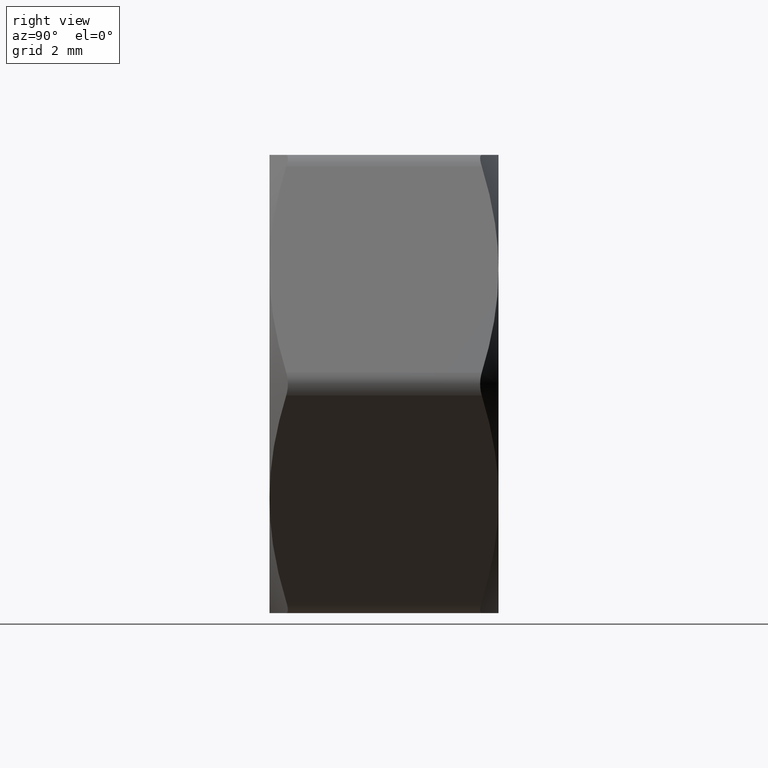
[diagram: clean part render]
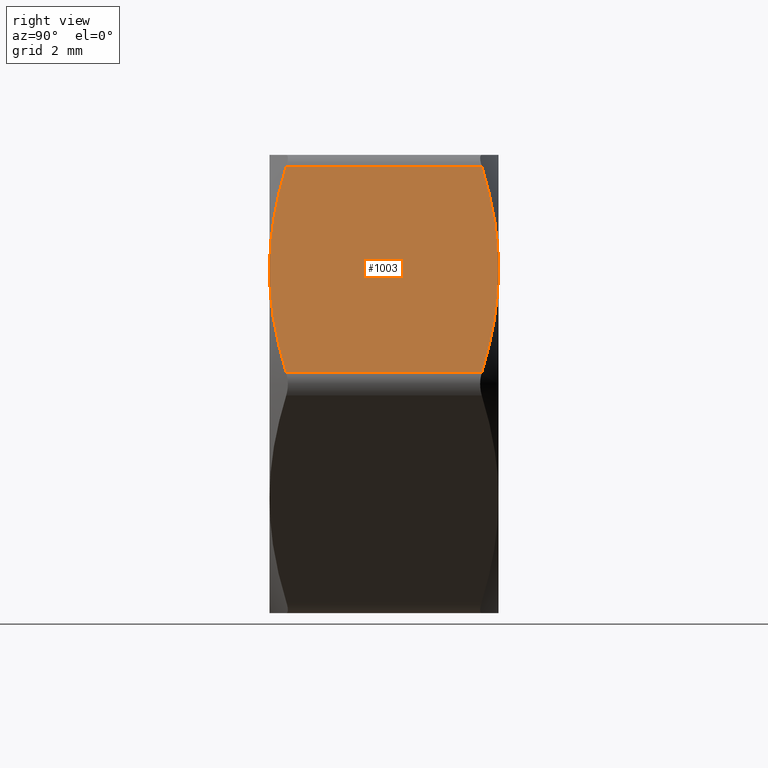
[diagram: same view with one face highlighted and labeled with its STEP entity id]
A machine part, right view. The second image highlights one B-rep face of the part: STEP entity #1003.
In plain terms, the highlighted planar face has unit normal (-0.866, 0, -0.5).
Its self-contained STEP definition (entity closure, byte-faithful):
#34 = CARTESIAN_POINT ( 'NONE',  ( 4.330127018922192800, 2.500000000000000000, 2.500000000000000400 ) ) ;
#93 = VERTEX_POINT ( 'NONE', #744 ) ;
#149 = PLANE ( 'NONE',  #686 ) ;
#171 = CARTESIAN_POINT ( 'NONE',  ( 3.890097551276384500, 2.465603583740585900, 3.262153394790036700 ) ) ;
#192 = EDGE_CURVE ( 'NONE', #222, #267, #1225, .T. ) ;
#219 = CARTESIAN_POINT ( 'NONE',  ( 3.888340324045457000, -2.500000000000000000, 3.265197001634443800 ) ) ;
#222 = VERTEX_POINT ( 'NONE', #1454 ) ;
#238 = EDGE_LOOP ( 'NONE', ( #1190, #813, #1465, #832, #796, #1350 ) ) ;
#267 = VERTEX_POINT ( 'NONE', #791 ) ;
#286 = DIRECTION ( 'NONE',  ( -0.0000000000000000000, 1.000000000000000000, -0.0000000000000000000 ) ) ;
#296 = CARTESIAN_POINT ( 'NONE',  ( 4.770156486568010800, -2.465603583740587200, 1.737846605209969300 ) ) ;
#310 = VECTOR ( 'NONE', #1689, 1000.000000000000000 ) ;
#347 = VERTEX_POINT ( 'NONE', #918 ) ;
#423 = CARTESIAN_POINT ( 'NONE',  ( 4.110116077647942800, 2.500000000000000000, 2.881070128508061800 ) ) ;
#424 = B_SPLINE_CURVE_WITH_KNOTS ( 'NONE', 3,
 ( #562, #952, #296, #431, #1490, #1474 ),
 .UNSPECIFIED., .F., .F.,
 ( 4, 2, 4 ),
 ( 0.002921158011986707300, 0.004227809343379583400, 0.005534460674772459900 ),
 .UNSPECIFIED. ) ;
#431 = CARTESIAN_POINT ( 'NONE',  ( 5.202901597395192600, -2.338705476013392700, 0.9883100865302608700 ) ) ;
#487 = CARTESIAN_POINT ( 'NONE',  ( 3.031088913245540500, 2.133547796624275500, 4.750000000000000000 ) ) ;
#504 = EDGE_CURVE ( 'NONE', #1113, #551, #648, .T. ) ;
#536 = CARTESIAN_POINT ( 'NONE',  ( 2.886751345948134400, 2.500000000000000000, 4.999999999999999100 ) ) ;
#551 = VERTEX_POINT ( 'NONE', #1296 ) ;
#562 = CARTESIAN_POINT ( 'NONE',  ( 4.330127018922192800, -2.500000000000000000, 2.500000000000000400 ) ) ;
#615 = CARTESIAN_POINT ( 'NONE',  ( 3.456602734153867200, -2.360097271922223500, 4.012988442864014800 ) ) ;
#641 = CARTESIAN_POINT ( 'NONE',  ( 5.629165124598854300, 2.500000000000000000, 0.2500000000000036600 ) ) ;
#648 = LINE ( 'NONE', #875, #310 ) ;
#686 = AXIS2_PLACEMENT_3D ( 'NONE', #536, #1185, #933 ) ;
#729 = CARTESIAN_POINT ( 'NONE',  ( 3.031088913243837400, -2.133547796623369100, 4.750000000002950500 ) ) ;
#744 = CARTESIAN_POINT ( 'NONE',  ( 4.330127018922192800, -2.500000000000000000, 2.500000000000000400 ) ) ;
#755 = CARTESIAN_POINT ( 'NONE',  ( 4.330127018922192800, 2.500000000000000000, 2.500000000000000400 ) ) ;
#791 = CARTESIAN_POINT ( 'NONE',  ( 4.330127018922192800, 2.500000000000000000, 2.500000000000000400 ) ) ;
#796 = ORIENTED_EDGE ( 'NONE', *, *, #504, .T. ) ;
#800 = B_SPLINE_CURVE_WITH_KNOTS ( 'NONE', 3,
 ( #729, #615, #219, #1654 ),
 .UNSPECIFIED., .F., .F.,
 ( 4, 4 ),
 ( 0.0002973740778378684100, 0.002921158011986707300 ),
 .UNSPECIFIED. ) ;
#813 = ORIENTED_EDGE ( 'NONE', *, *, #1025, .T. ) ;
#832 = ORIENTED_EDGE ( 'NONE', *, *, #1246, .T. ) ;
#875 = CARTESIAN_POINT ( 'NONE',  ( 3.031088913245541000, 2.500000000000000000, 4.749999999999999100 ) ) ;
#918 = CARTESIAN_POINT ( 'NONE',  ( 5.629165124598853400, -2.133547796624276800, 0.2500000000000047200 ) ) ;
#933 = DIRECTION ( 'NONE',  ( -0.4999999999999998900, 0.0000000000000000000, 0.8660254037844386000 ) ) ;
#948 = CARTESIAN_POINT ( 'NONE',  ( 3.457352440449199500, 2.338705476013392300, 4.011689913469743900 ) ) ;
#952 = CARTESIAN_POINT ( 'NONE',  ( 4.550137960196448000, -2.500000000000000400, 2.118929871491944400 ) ) ;
#1003 = ADVANCED_FACE ( 'NONE', ( #1013 ), #149, .F. ) ;
#1013 = FACE_OUTER_BOUND ( 'NONE', #238, .T. ) ;
#1025 = EDGE_CURVE ( 'NONE', #347, #222, #1273, .T. ) ;
#1113 = VERTEX_POINT ( 'NONE', #1469 ) ;
#1185 = DIRECTION ( 'NONE',  ( -0.8660254037844387100, 0.0000000000000000000, -0.4999999999999999400 ) ) ;
#1190 = ORIENTED_EDGE ( 'NONE', *, *, #1229, .T. ) ;
#1225 = B_SPLINE_CURVE_WITH_KNOTS ( 'NONE', 3,
 ( #1665, #1423, #1662, #755 ),
 .UNSPECIFIED., .F., .F.,
 ( 4, 4 ),
 ( 0.0002973740778378696600, 0.002921158011986712500 ),
 .UNSPECIFIED. ) ;
#1229 = EDGE_CURVE ( 'NONE', #93, #347, #424, .T. ) ;
#1236 = VECTOR ( 'NONE', #286, 1000.000000000000000 ) ;
#1246 = EDGE_CURVE ( 'NONE', #267, #1113, #1393, .T. ) ;
#1264 = CARTESIAN_POINT ( 'NONE',  ( 3.243356406411422600, 2.246561961703186700, 4.382341917041414600 ) ) ;
#1273 = LINE ( 'NONE', #641, #1236 ) ;
#1296 = CARTESIAN_POINT ( 'NONE',  ( 3.031088913243837400, -2.133547796623369100, 4.750000000002950500 ) ) ;
#1350 = ORIENTED_EDGE ( 'NONE', *, *, #1424, .T. ) ;
#1393 = B_SPLINE_CURVE_WITH_KNOTS ( 'NONE', 3,
 ( #34, #423, #171, #948, #1264, #487 ),
 .UNSPECIFIED., .F., .F.,
 ( 4, 2, 4 ),
 ( 0.002921158011986712500, 0.004227809343379587700, 0.005534460674772463300 ),
 .UNSPECIFIED. ) ;
#1423 = CARTESIAN_POINT ( 'NONE',  ( 5.203651303690526800, 2.360097271922224400, 0.9870115571359899800 ) ) ;
#1424 = EDGE_CURVE ( 'NONE', #551, #93, #800, .T. ) ;
#1454 = CARTESIAN_POINT ( 'NONE',  ( 5.629165124600557800, 2.133547796623369600, 0.2499999999970531900 ) ) ;
#1465 = ORIENTED_EDGE ( 'NONE', *, *, #192, .T. ) ;
#1469 = CARTESIAN_POINT ( 'NONE',  ( 3.031088913245540500, 2.133547796624275500, 4.750000000000000000 ) ) ;
#1474 = CARTESIAN_POINT ( 'NONE',  ( 5.629165124598853400, -2.133547796624276800, 0.2500000000000047200 ) ) ;
#1490 = CARTESIAN_POINT ( 'NONE',  ( 5.416897631432972200, -2.246561961703187600, 0.6176580829585907000 ) ) ;
#1654 = CARTESIAN_POINT ( 'NONE',  ( 4.330127018922192800, -2.500000000000000000, 2.500000000000000400 ) ) ;
#1662 = CARTESIAN_POINT ( 'NONE',  ( 4.771913713798936000, 2.500000000000000000, 1.734802998365561300 ) ) ;
#1665 = CARTESIAN_POINT ( 'NONE',  ( 5.629165124600557800, 2.133547796623369600, 0.2499999999970531900 ) ) ;
#1689 = DIRECTION ( 'NONE',  ( 0.0000000000000000000, -1.000000000000000000, 0.0000000000000000000 ) ) ;